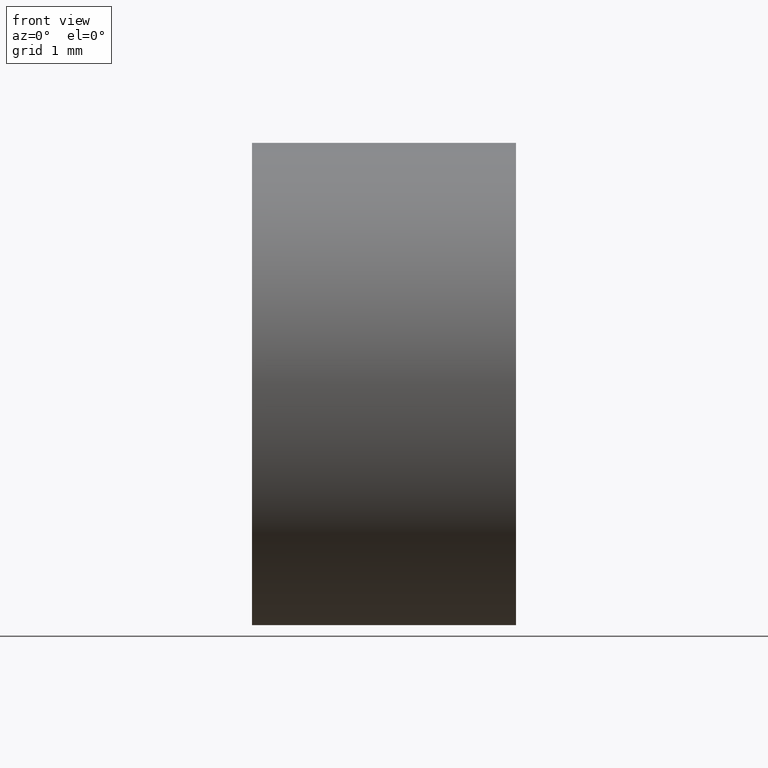
[diagram: clean part render]
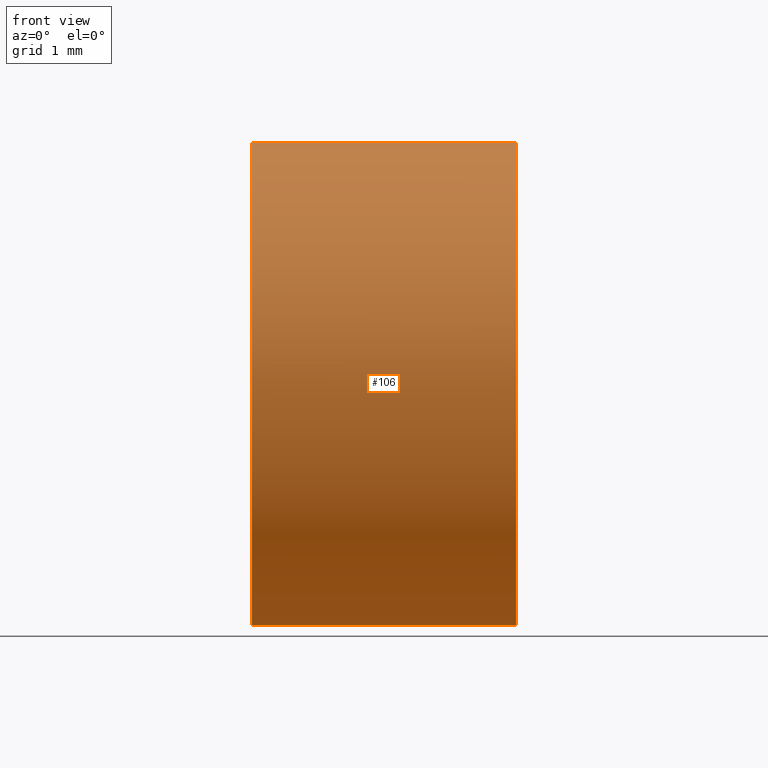
[diagram: same view with one face highlighted and labeled with its STEP entity id]
A machine part, front view. The second image highlights one B-rep face of the part: STEP entity #106.
In plain terms, the highlighted cylindrical surface (partial cylindrical patch) has radius 2 mm, axis along (-1, -0, -0).
Its self-contained STEP definition (entity closure, byte-faithful):
#6 = CARTESIAN_POINT ( 'NONE',  ( 10.34201531756644400, 6.515563045701520100, 0.0000000000000000000 ) ) ;
#8 = CIRCLE ( 'NONE', #64, 2.000000000000000900 ) ;
#9 = EDGE_CURVE ( 'NONE', #168, #81, #8, .T. ) ;
#15 = VERTEX_POINT ( 'NONE', #60 ) ;
#17 = EDGE_CURVE ( 'NONE', #15, #39, #157, .T. ) ;
#20 = CARTESIAN_POINT ( 'NONE',  ( 13.34525218437558500, 6.515563045701520100, -2.000000000000000900 ) ) ;
#24 = ORIENTED_EDGE ( 'NONE', *, *, #183, .T. ) ;
#29 = CARTESIAN_POINT ( 'NONE',  ( 11.15698987586548600, 6.515563045701520100, 2.000000000000000900 ) ) ;
#38 = ORIENTED_EDGE ( 'NONE', *, *, #17, .F. ) ;
#39 = VERTEX_POINT ( 'NONE', #29 ) ;
#42 = VECTOR ( 'NONE', #174, 1000.000000000000000 ) ;
#44 = DIRECTION ( 'NONE',  ( -1.000000000000000000, -0.0000000000000000000, -0.0000000000000000000 ) ) ;
#49 = DIRECTION ( 'NONE',  ( -1.000000000000000000, -0.0000000000000000000, -0.0000000000000000000 ) ) ;
#50 = CARTESIAN_POINT ( 'NONE',  ( 10.34201531756644400, 6.515563045701520100, 2.000000000000000900 ) ) ;
#51 = VERTEX_POINT ( 'NONE', #171 ) ;
#57 = EDGE_CURVE ( 'NONE', #81, #51, #115, .T. ) ;
#58 = CARTESIAN_POINT ( 'NONE',  ( 13.34525218437558500, 6.515563045701520100, 0.0000000000000000000 ) ) ;
#60 = CARTESIAN_POINT ( 'NONE',  ( 11.15698987586548600, 6.515563045701520100, -2.000000000000000900 ) ) ;
#61 = CARTESIAN_POINT ( 'NONE',  ( 13.34525218437558500, 6.515563045701520100, 0.0000000000000000000 ) ) ;
#63 = FACE_OUTER_BOUND ( 'NONE', #118, .T. ) ;
#64 = AXIS2_PLACEMENT_3D ( 'NONE', #61, #162, #184 ) ;
#66 = CARTESIAN_POINT ( 'NONE',  ( 13.34525218437558500, 4.515563045701519200, 0.0000000000000000000 ) ) ;
#69 = VECTOR ( 'NONE', #49, 1000.000000000000000 ) ;
#81 = VERTEX_POINT ( 'NONE', #66 ) ;
#91 = DIRECTION ( 'NONE',  ( 0.0000000000000000000, 0.0000000000000000000, 1.000000000000000000 ) ) ;
#99 = ORIENTED_EDGE ( 'NONE', *, *, #57, .T. ) ;
#100 = AXIS2_PLACEMENT_3D ( 'NONE', #6, #141, #167 ) ;
#106 = ADVANCED_FACE ( 'NONE', ( #63 ), #144, .T. ) ;
#107 = DIRECTION ( 'NONE',  ( 0.0000000000000000000, 0.0000000000000000000, 1.000000000000000000 ) ) ;
#115 = CIRCLE ( 'NONE', #134, 2.000000000000000900 ) ;
#118 = EDGE_LOOP ( 'NONE', ( #132, #126, #99, #24, #38 ) ) ;
#121 = DIRECTION ( 'NONE',  ( -1.000000000000000000, -0.0000000000000000000, -0.0000000000000000000 ) ) ;
#126 = ORIENTED_EDGE ( 'NONE', *, *, #9, .T. ) ;
#130 = LINE ( 'NONE', #50, #42 ) ;
#132 = ORIENTED_EDGE ( 'NONE', *, *, #181, .F. ) ;
#134 = AXIS2_PLACEMENT_3D ( 'NONE', #58, #121, #107 ) ;
#137 = LINE ( 'NONE', #165, #69 ) ;
#141 = DIRECTION ( 'NONE',  ( -1.000000000000000000, -0.0000000000000000000, -0.0000000000000000000 ) ) ;
#144 = CYLINDRICAL_SURFACE ( 'NONE', #100, 2.000000000000000900 ) ;
#157 = CIRCLE ( 'NONE', #185, 2.000000000000000900 ) ;
#161 = CARTESIAN_POINT ( 'NONE',  ( 11.15698987586548600, 6.515563045701520100, 0.0000000000000000000 ) ) ;
#162 = DIRECTION ( 'NONE',  ( -1.000000000000000000, -0.0000000000000000000, -0.0000000000000000000 ) ) ;
#165 = CARTESIAN_POINT ( 'NONE',  ( 10.34201531756644400, 6.515563045701520100, -2.000000000000000900 ) ) ;
#167 = DIRECTION ( 'NONE',  ( 0.0000000000000000000, 0.0000000000000000000, 1.000000000000000000 ) ) ;
#168 = VERTEX_POINT ( 'NONE', #20 ) ;
#171 = CARTESIAN_POINT ( 'NONE',  ( 13.34525218437558500, 6.515563045701520100, 2.000000000000000900 ) ) ;
#174 = DIRECTION ( 'NONE',  ( -1.000000000000000000, -0.0000000000000000000, -0.0000000000000000000 ) ) ;
#181 = EDGE_CURVE ( 'NONE', #168, #15, #137, .T. ) ;
#183 = EDGE_CURVE ( 'NONE', #51, #39, #130, .T. ) ;
#184 = DIRECTION ( 'NONE',  ( 0.0000000000000000000, 0.0000000000000000000, 1.000000000000000000 ) ) ;
#185 = AXIS2_PLACEMENT_3D ( 'NONE', #161, #44, #91 ) ;